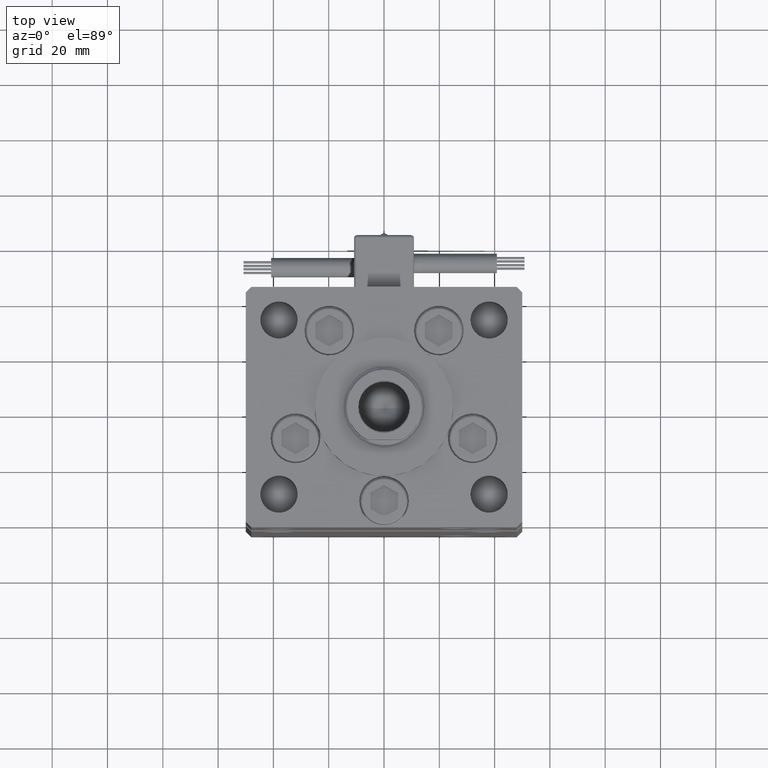
[diagram: clean part render]
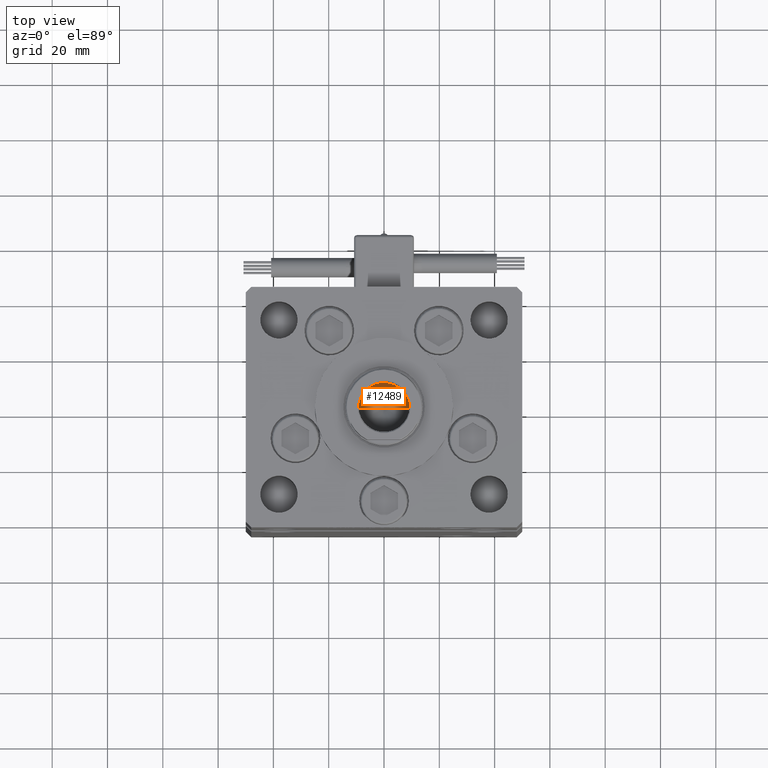
[diagram: same view with one face highlighted and labeled with its STEP entity id]
A machine part, top view. The second image highlights one B-rep face of the part: STEP entity #12489.
In plain terms, the highlighted conical surface has half-angle 59 deg.
Its self-contained STEP definition (entity closure, byte-faithful):
#753 = CARTESIAN_POINT ( 'NONE',  ( 0.000000000000000000, 0.000000000000000000, 150.2500000000000000 ) ) ;
#2494 = CARTESIAN_POINT ( 'NONE',  ( -9.249999999999994671, 1.132798289211300909E-15, 150.2500000000000000 ) ) ;
#4073 = CONICAL_SURFACE ( 'NONE', #39642, 9.249999999999994671, 1.029744258676652313 ) ;
#7411 = DIRECTION ( 'NONE',  ( -0.8571673007021112234, 1.049727191138617340E-16, 0.5150380749100560429 ) ) ;
#9900 = VERTEX_POINT ( 'NONE', #46082 ) ;
#10756 = CARTESIAN_POINT ( 'NONE',  ( 9.249999999999994671, 0.000000000000000000, 150.2500000000000000 ) ) ;
#12489 = ADVANCED_FACE ( 'NONE', ( #44080 ), #4073, .F. ) ;
#12636 = CIRCLE ( 'NONE', #51807, 9.249999999999994671 ) ;
#13905 = DIRECTION ( 'NONE',  ( 0.8571673007021112234, 0.000000000000000000, 0.5150380749100560429 ) ) ;
#14118 = DIRECTION ( 'NONE',  ( 1.000000000000000000, 0.000000000000000000, 0.000000000000000000 ) ) ;
#14801 = EDGE_CURVE ( 'NONE', #40080, #9900, #44708, .T. ) ;
#17062 = EDGE_LOOP ( 'NONE', ( #47628, #54969, #44219 ) ) ;
#23972 = LINE ( 'NONE', #33919, #47167 ) ;
#28783 = VECTOR ( 'NONE', #13905, 1000.000000000000000 ) ;
#30902 = VERTEX_POINT ( 'NONE', #2494 ) ;
#31985 = DIRECTION ( 'NONE',  ( 1.000000000000000000, 0.000000000000000000, 0.000000000000000000 ) ) ;
#33919 = CARTESIAN_POINT ( 'NONE',  ( -9.249999999999994671, 1.132798289211300909E-15, 150.2500000000000000 ) ) ;
#35801 = DIRECTION ( 'NONE',  ( -0.000000000000000000, -0.000000000000000000, 1.000000000000000000 ) ) ;
#38142 = CARTESIAN_POINT ( 'NONE',  ( 0.000000000000000000, 0.000000000000000000, 150.2500000000000000 ) ) ;
#39642 = AXIS2_PLACEMENT_3D ( 'NONE', #753, #35801, #14118 ) ;
#39746 = CARTESIAN_POINT ( 'NONE',  ( -1.046994375366439223E-14, 0.000000000000000000, 144.6920392739950501 ) ) ;
#40080 = VERTEX_POINT ( 'NONE', #39746 ) ;
#44080 = FACE_OUTER_BOUND ( 'NONE', #17062, .T. ) ;
#44219 = ORIENTED_EDGE ( 'NONE', *, *, #51020, .T. ) ;
#44708 = LINE ( 'NONE', #10756, #28783 ) ;
#46082 = CARTESIAN_POINT ( 'NONE',  ( 9.249999999999994671, 0.000000000000000000, 150.2500000000000000 ) ) ;
#47167 = VECTOR ( 'NONE', #7411, 1000.000000000000000 ) ;
#47628 = ORIENTED_EDGE ( 'NONE', *, *, #48435, .F. ) ;
#48435 = EDGE_CURVE ( 'NONE', #40080, #30902, #23972, .T. ) ;
#49944 = DIRECTION ( 'NONE',  ( -0.000000000000000000, -0.000000000000000000, 1.000000000000000000 ) ) ;
#51020 = EDGE_CURVE ( 'NONE', #9900, #30902, #12636, .T. ) ;
#51807 = AXIS2_PLACEMENT_3D ( 'NONE', #38142, #49944, #31985 ) ;
#54969 = ORIENTED_EDGE ( 'NONE', *, *, #14801, .T. ) ;